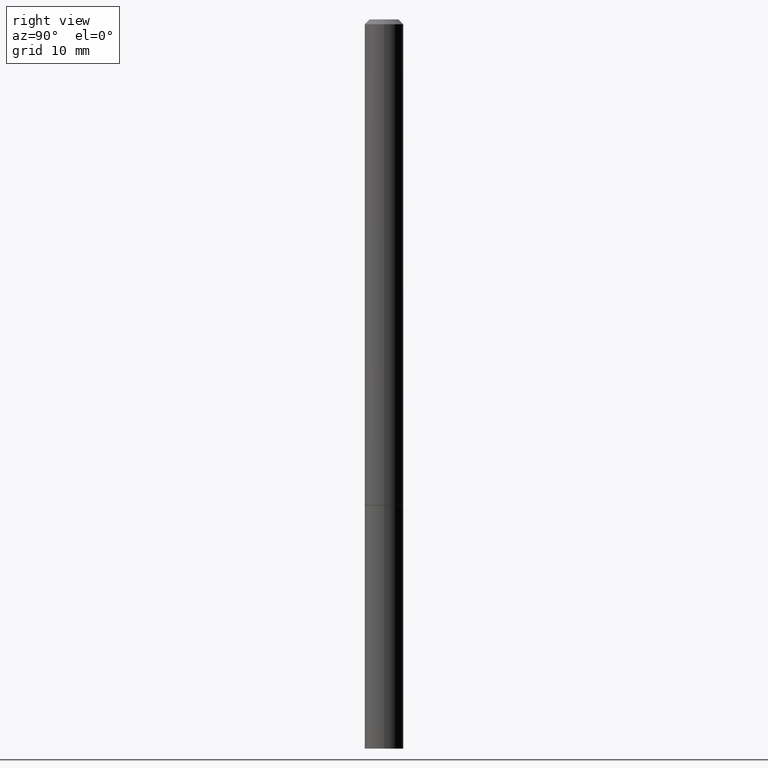
[diagram: clean part render]
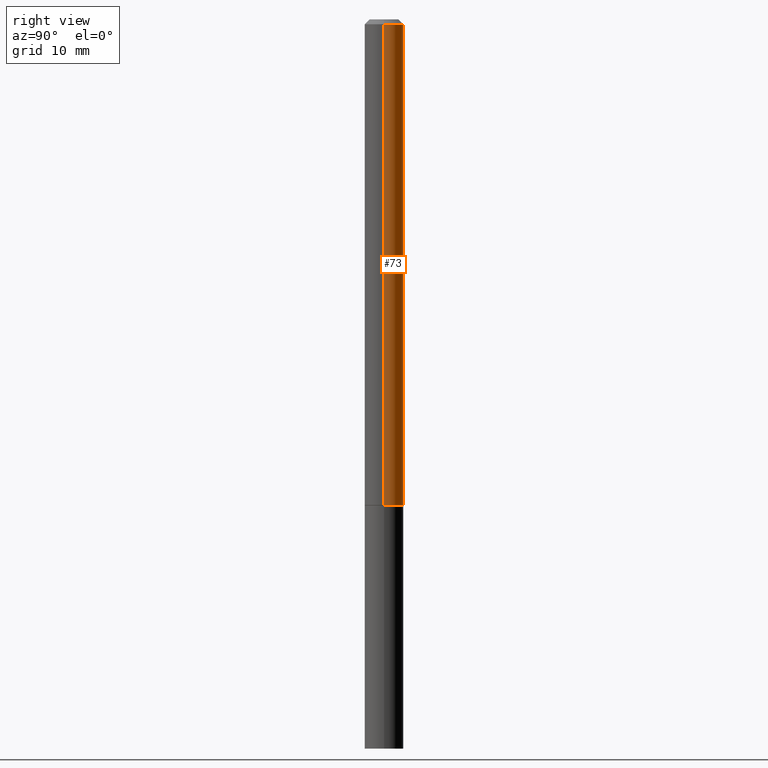
[diagram: same view with one face highlighted and labeled with its STEP entity id]
A machine part, right view. The second image highlights one B-rep face of the part: STEP entity #73.
In plain terms, the highlighted cylindrical surface (edge-blend (fillet) strip) has radius 2.0002 mm, axis along (-0, 0, 1).
Its self-contained STEP definition (entity closure, byte-faithful):
#7 = EDGE_CURVE ( 'NONE', #15, #336, #228, .T. ) ;
#14 = DIRECTION ( 'NONE',  ( -2.445468806185136877E-29, 3.491481338843145188E-15, 1.000000000000000000 ) ) ;
#15 = VERTEX_POINT ( 'NONE', #19 ) ;
#19 = CARTESIAN_POINT ( 'NONE',  ( 0.07875000000000000056, -7.419397845041680468E-15, -1.967499999999999805 ) ) ;
#32 = CARTESIAN_POINT ( 'NONE',  ( -0.07874999999999977851, 4.800786840909289628E-16, -0.02000000000000001776 ) ) ;
#35 = EDGE_LOOP ( 'NONE', ( #287, #54, #63, #102 ) ) ;
#37 = LINE ( 'NONE', #236, #247 ) ;
#38 = DIRECTION ( 'NONE',  ( -2.445468806185136597E-29, 3.491481338843145583E-15, 1.000000000000000000 ) ) ;
#54 = ORIENTED_EDGE ( 'NONE', *, *, #113, .T. ) ;
#61 = AXIS2_PLACEMENT_3D ( 'NONE', #249, #83, #198 ) ;
#63 = ORIENTED_EDGE ( 'NONE', *, *, #240, .F. ) ;
#70 = DIRECTION ( 'NONE',  ( -2.445468806185136597E-29, 3.491481338843145583E-15, 1.000000000000000000 ) ) ;
#72 = AXIS2_PLACEMENT_3D ( 'NONE', #122, #38, #124 ) ;
#73 = ADVANCED_FACE ( 'NONE', ( #276 ), #299, .T. ) ;
#83 = DIRECTION ( 'NONE',  ( -2.445468806185136597E-29, 3.491481338843145583E-15, 1.000000000000000000 ) ) ;
#102 = ORIENTED_EDGE ( 'NONE', *, *, #7, .F. ) ;
#113 = EDGE_CURVE ( 'NONE', #156, #332, #37, .T. ) ;
#122 = CARTESIAN_POINT ( 'NONE',  ( 4.890937612370276662E-31, -6.982962677686296539E-17, -0.02000000000000001776 ) ) ;
#124 = DIRECTION ( 'NONE',  ( 1.000000000000000000, -6.982962677686265922E-15, 0.000000000000000000 ) ) ;
#156 = VERTEX_POINT ( 'NONE', #183 ) ;
#169 = EDGE_CURVE ( 'NONE', #15, #156, #204, .T. ) ;
#180 = DIRECTION ( 'NONE',  ( 1.000000000000000000, -6.982962677686261977E-15, 0.000000000000000000 ) ) ;
#183 = CARTESIAN_POINT ( 'NONE',  ( -0.07875000000000000056, -2.910107176064290492E-15, -1.967499999999999805 ) ) ;
#198 = DIRECTION ( 'NONE',  ( 1.000000000000000000, -6.982962677686266711E-15, 4.876176775795935793E-29 ) ) ;
#199 = AXIS2_PLACEMENT_3D ( 'NONE', #321, #70, #180 ) ;
#204 = CIRCLE ( 'NONE', #199, 0.07875000000000000056 ) ;
#228 = LINE ( 'NONE', #278, #349 ) ;
#236 = CARTESIAN_POINT ( 'NONE',  ( -0.07874999999999987566, 5.595524044110780128E-16, -3.873661383575732186E-30 ) ) ;
#240 = EDGE_CURVE ( 'NONE', #336, #332, #282, .T. ) ;
#247 = VECTOR ( 'NONE', #14, 39.37007874015748143 ) ;
#249 = CARTESIAN_POINT ( 'NONE',  ( 0.000000000000000000, 0.000000000000000000, 0.000000000000000000 ) ) ;
#253 = CARTESIAN_POINT ( 'NONE',  ( 0.07874999999999977851, -6.100938441013695115E-16, -0.02000000000000001776 ) ) ;
#276 = FACE_OUTER_BOUND ( 'NONE', #35, .T. ) ;
#278 = CARTESIAN_POINT ( 'NONE',  ( 0.07874999999999987566, -5.499083108677926554E-16, 3.839989210939293411E-30 ) ) ;
#282 = CIRCLE ( 'NONE', #72, 0.07874999999999977851 ) ;
#287 = ORIENTED_EDGE ( 'NONE', *, *, #169, .T. ) ;
#294 = DIRECTION ( 'NONE',  ( -2.445468806185136877E-29, 3.491481338843145188E-15, 1.000000000000000000 ) ) ;
#299 = CYLINDRICAL_SURFACE ( 'NONE', #61, 0.07874999999999987566 ) ;
#321 = CARTESIAN_POINT ( 'NONE',  ( 4.811459876169255671E-29, -6.869489534173887122E-15, -1.967499999999999805 ) ) ;
#332 = VERTEX_POINT ( 'NONE', #32 ) ;
#336 = VERTEX_POINT ( 'NONE', #253 ) ;
#349 = VECTOR ( 'NONE', #294, 39.37007874015748143 ) ;